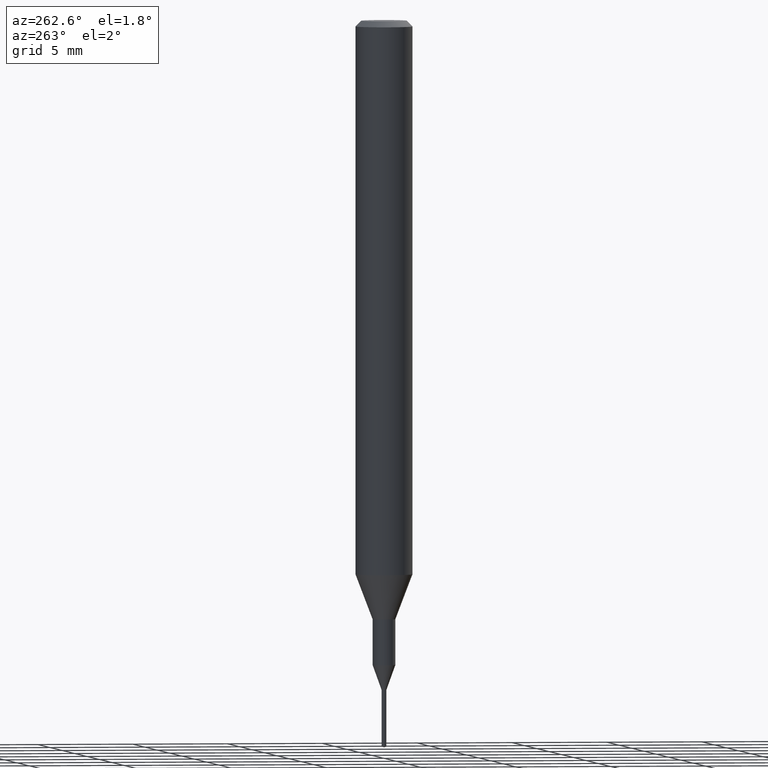
[diagram: clean part render]
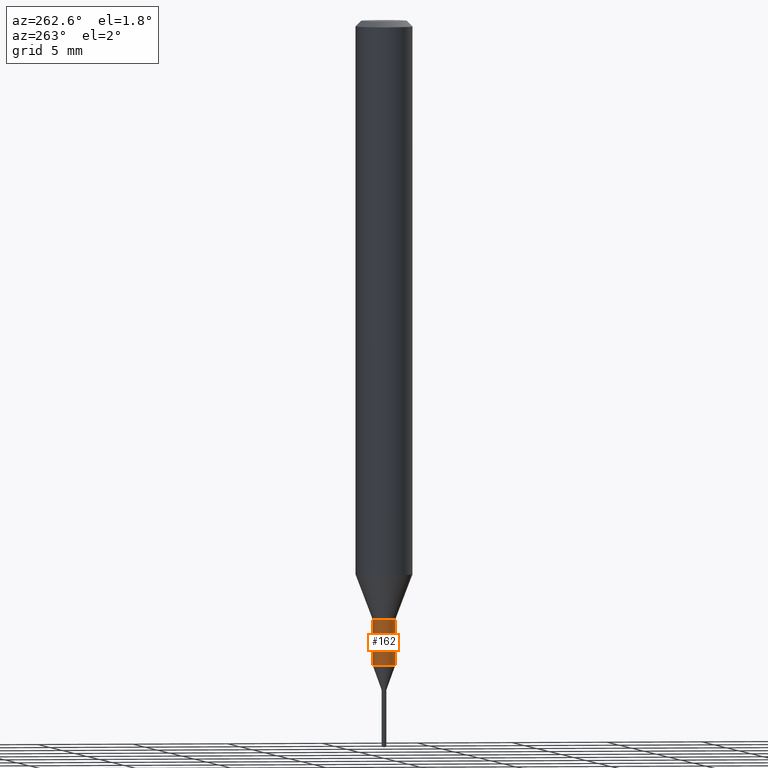
[diagram: same view with one face highlighted and labeled with its STEP entity id]
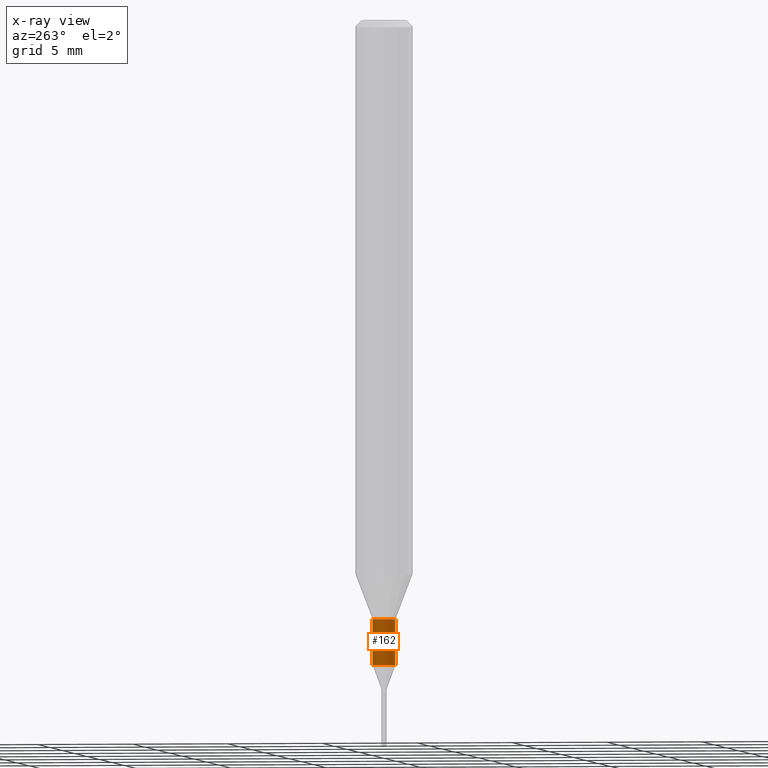
[diagram: x-ray of the same camera — body ghosted, the highlighted face saturated]
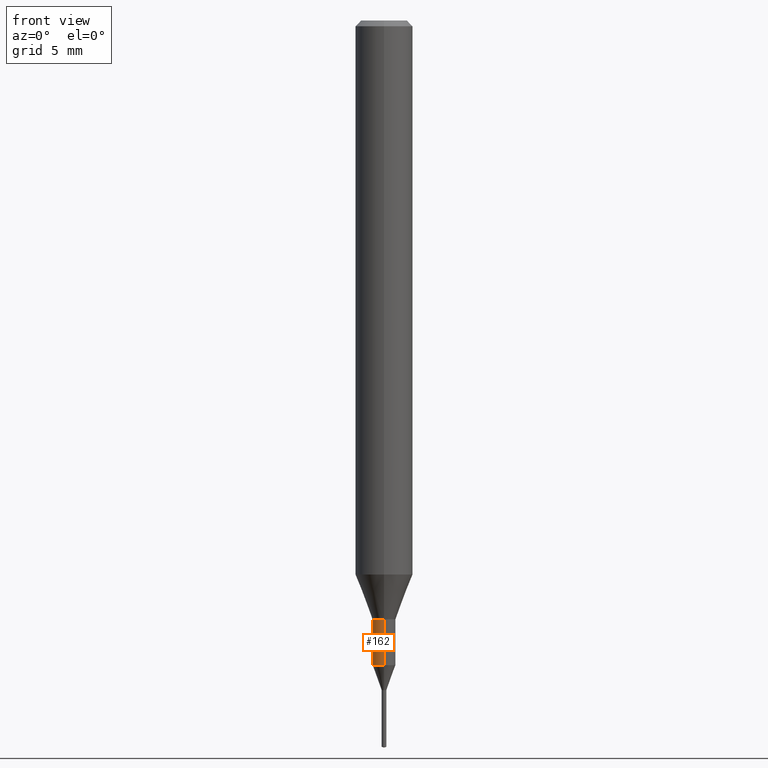
[diagram: same view with one face highlighted and labeled with its STEP entity id]
A machine part, auxiliary view. The second image highlights one B-rep face of the part: STEP entity #162.
The next image is the same camera in x-ray: the body ghosted, the highlighted face saturated — about 0% of this face is hidden behind the body in this view.
A second angle (front view) of the same face is appended — the face is thin or edge-on in the first view.
In plain terms, the highlighted cylindrical surface (edge-blend (fillet) strip) has radius 0.5999 mm, axis along (-0, -0, 1).
Its self-contained STEP definition (entity closure, byte-faithful):
#136=VERTEX_POINT('',#317);
#162=ADVANCED_FACE('',(#343),#344,.T.);
#166=EDGE_CURVE('',#210,#214,#348,.T.);
#176=VERTEX_POINT('',#360);
#204=EDGE_CURVE('',#214,#136,#391,.T.);
#210=VERTEX_POINT('',#397);
#214=VERTEX_POINT('',#401);
#224=EDGE_CURVE('',#176,#210,#413,.T.);
#226=EDGE_CURVE('',#176,#136,#415,.T.);
#317=CARTESIAN_POINT('',(0.0,0.59995,-33.695));
#343=FACE_OUTER_BOUND('',#551,.T.);
#344=CYLINDRICAL_SURFACE('',#552,0.59995);
#348=CIRCLE('',#557,0.59995);
#360=CARTESIAN_POINT('',(7.34702581975735E-017,-0.59995,-33.695));
#391=LINE('',#611,#612);
#397=CARTESIAN_POINT('',(7.34702581975735E-017,-0.59995,-31.3));
#401=CARTESIAN_POINT('',(0.0,0.59995,-31.3));
#413=LINE('',#641,#642);
#415=CIRCLE('',#645,0.59995);
#551=EDGE_LOOP('',(#773,#774,#775,#776));
#552=AXIS2_PLACEMENT_3D('',#777,#778,#779);
#557=AXIS2_PLACEMENT_3D('',#780,#781,#782);
#611=CARTESIAN_POINT('',(-7.34702581975735E-017,0.59995,-32.4975));
#612=VECTOR('',#836,1.0);
#641=CARTESIAN_POINT('',(7.34702581975735E-017,-0.59995,-32.4975));
#642=VECTOR('',#859,1.0);
#645=AXIS2_PLACEMENT_3D('',#860,#861,#862);
#773=ORIENTED_EDGE('',*,*,#204,.T.);
#774=ORIENTED_EDGE('',*,*,#226,.F.);
#775=ORIENTED_EDGE('',*,*,#224,.T.);
#776=ORIENTED_EDGE('',*,*,#166,.T.);
#777=CARTESIAN_POINT('',(0.0,0.0,-32.4975));
#778=DIRECTION('',(-0.0,-0.0,1.0));
#779=DIRECTION('',(0.0,1.0,0.0));
#780=CARTESIAN_POINT('',(0.0,0.0,-31.3));
#781=DIRECTION('',(0.0,0.0,-1.0));
#782=DIRECTION('',(0.0,1.0,0.0));
#836=DIRECTION('',(0.0,0.0,-1.0));
#859=DIRECTION('',(-0.0,-0.0,1.0));
#860=CARTESIAN_POINT('',(0.0,0.0,-33.695));
#861=DIRECTION('',(0.0,0.0,-1.0));
#862=DIRECTION('',(0.0,1.0,0.0));